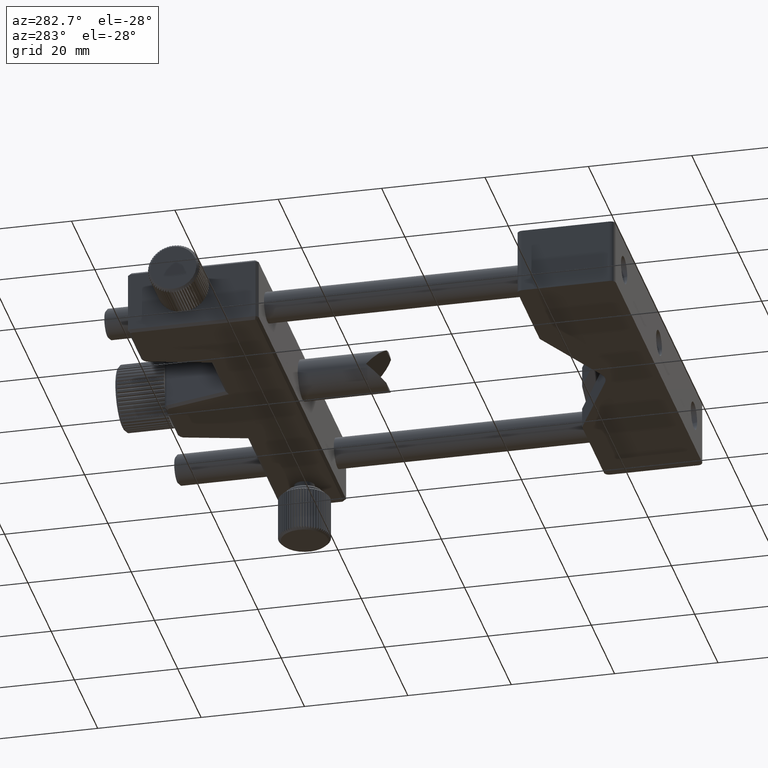
[diagram: clean part render]
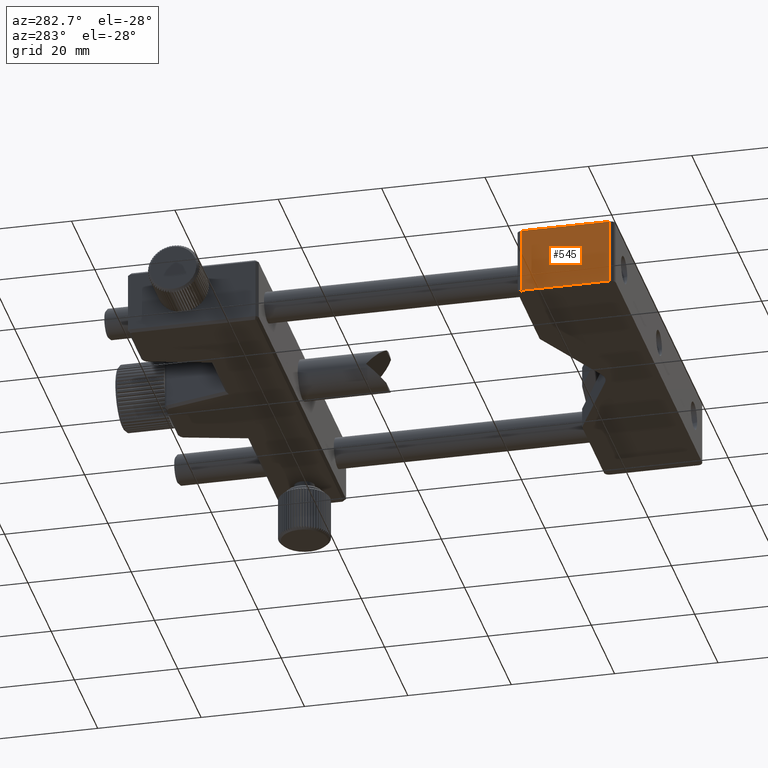
[diagram: same view with one face highlighted and labeled with its STEP entity id]
A machine part, auxiliary view. The second image highlights one B-rep face of the part: STEP entity #545.
In plain terms, the highlighted planar face has unit normal (-1, 0, 0).
Its self-contained STEP definition (entity closure, byte-faithful):
#395 = CARTESIAN_POINT ( 'NONE',  ( -64.33676122642619077, -6.511135224870471028, 6.349999999999999645 ) ) ;
#545 = ADVANCED_FACE ( 'NONE', ( #1113 ), #6094, .T. ) ;
#1113 = FACE_OUTER_BOUND ( 'NONE', #8193, .T. ) ;
#1140 = EDGE_CURVE ( 'NONE', #1711, #8858, #6876, .T. ) ;
#1431 = LINE ( 'NONE', #8861, #6014 ) ;
#1711 = VERTEX_POINT ( 'NONE', #7106 ) ;
#2081 = VECTOR ( 'NONE', #6725, 1000.000000000000000 ) ;
#2120 = EDGE_CURVE ( 'NONE', #8120, #8858, #1431, .T. ) ;
#2258 = CARTESIAN_POINT ( 'NONE',  ( -64.33676122642619077, -23.51113522487050389, 6.349999999999999645 ) ) ;
#4664 = EDGE_CURVE ( 'NONE', #6487, #1711, #7821, .T. ) ;
#4883 = CARTESIAN_POINT ( 'NONE',  ( -64.33676122642619077, -6.511135224870471028, 6.349999999999999645 ) ) ;
#6014 = VECTOR ( 'NONE', #13733, 1000.000000000000000 ) ;
#6094 = PLANE ( 'NONE',  #12262 ) ;
#6487 = VERTEX_POINT ( 'NONE', #4883 ) ;
#6544 = CARTESIAN_POINT ( 'NONE',  ( -64.33676122642619077, -6.511135224870471028, 6.349999999999999645 ) ) ;
#6725 = DIRECTION ( 'NONE',  ( 0.000000000000000000, 0.000000000000000000, -1.000000000000000000 ) ) ;
#6876 = LINE ( 'NONE', #9096, #2081 ) ;
#7106 = CARTESIAN_POINT ( 'NONE',  ( -64.33676122642619077, -23.51113522487050389, 6.349999999999999645 ) ) ;
#7821 = LINE ( 'NONE', #395, #11267 ) ;
#8120 = VERTEX_POINT ( 'NONE', #8463 ) ;
#8193 = EDGE_LOOP ( 'NONE', ( #9896, #12139, #8359, #13098 ) ) ;
#8359 = ORIENTED_EDGE ( 'NONE', *, *, #2120, .T. ) ;
#8463 = CARTESIAN_POINT ( 'NONE',  ( -64.33676122642619077, -6.511135224870471028, -6.349999999999999645 ) ) ;
#8858 = VERTEX_POINT ( 'NONE', #14036 ) ;
#8861 = CARTESIAN_POINT ( 'NONE',  ( -64.33676122642619077, -6.511135224870471028, -6.349999999999999645 ) ) ;
#9096 = CARTESIAN_POINT ( 'NONE',  ( -64.33676122642619077, -23.51113522487050389, 6.349999999999999645 ) ) ;
#9896 = ORIENTED_EDGE ( 'NONE', *, *, #4664, .F. ) ;
#10825 = DIRECTION ( 'NONE',  ( 0.000000000000000000, 0.000000000000000000, 1.000000000000000000 ) ) ;
#11066 = VECTOR ( 'NONE', #11512, 1000.000000000000000 ) ;
#11267 = VECTOR ( 'NONE', #12779, 1000.000000000000000 ) ;
#11512 = DIRECTION ( 'NONE',  ( 0.000000000000000000, 0.000000000000000000, -1.000000000000000000 ) ) ;
#12139 = ORIENTED_EDGE ( 'NONE', *, *, #12484, .T. ) ;
#12262 = AXIS2_PLACEMENT_3D ( 'NONE', #2258, #14815, #10825 ) ;
#12484 = EDGE_CURVE ( 'NONE', #6487, #8120, #15414, .T. ) ;
#12779 = DIRECTION ( 'NONE',  ( 0.000000000000000000, -1.000000000000000000, 0.000000000000000000 ) ) ;
#13098 = ORIENTED_EDGE ( 'NONE', *, *, #1140, .F. ) ;
#13733 = DIRECTION ( 'NONE',  ( 0.000000000000000000, -1.000000000000000000, 0.000000000000000000 ) ) ;
#14036 = CARTESIAN_POINT ( 'NONE',  ( -64.33676122642619077, -23.51113522487050389, -6.349999999999999645 ) ) ;
#14815 = DIRECTION ( 'NONE',  ( -1.000000000000000000, 0.000000000000000000, 0.000000000000000000 ) ) ;
#15414 = LINE ( 'NONE', #6544, #11066 ) ;